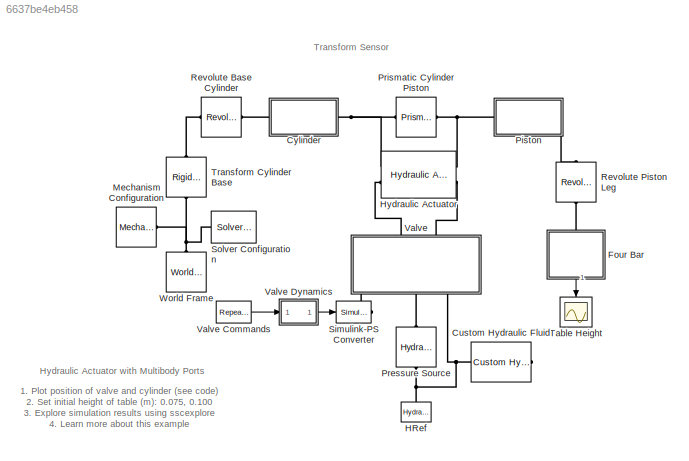
MODEL slx_6637be4eb458
KIND model
CONFIG AbsTol = 1e-3
CONFIG EnableMultiTasking = on
CONFIG FixedStep = auto
CONFIG MaxStep = auto
CONFIG MinStep = auto
CONFIG PostLoadFcn = warning off sm:compiler:state:UnsatisfiedDesiredTarget\nwarning off Simulink:Engine:UsingDefaultMaxStepSize\n
CONFIG RelTol = 1e-3
CONFIG SampleTimeConstraint = Unconstrained
CONFIG Solver = VariableStepAuto
CONFIG SolverName = VariableStepAuto
CONFIG StartTime = 0.0
CONFIG StopTime = 30
WORKSPACE source: MATLAB code (in-file)
WORKSPACE cyl_len = 11
WORKSPACE cyl_rOut = 1.1
WORKSPACE cyl_rInn = 1
WORKSPACE cap_len = 1
WORKSPACE pst_len = 1
WORKSPACE pst_rOut = cyl_rInn  (= 1)
WORKSPACE rod_len = 14
WORKSPACE rod_rOut = 0.5
WORKSPACE leg_length = 15
WORKSPACE platform_length = 25
BLOCK [Reference] Custom Hydraulic Fluid  REF=fl_lib/Hydraulic/Hydraulic Utilities/Custom Hydraulic
Fluid
  Ports = [0, 0, 0, 0, 0, 0, 1]
  SourceBlock = fl_lib/Hydraulic/Hydraulic Utilities/Custom Hydraulic\nFluid
  SourceProductBaseCode = SS
  SourceProductName = Simscape
  SourceType = Custom Hydraulic\nFluid
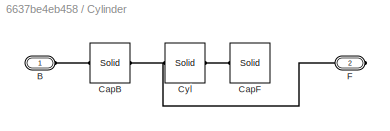
BLOCK [SubSystem] Cylinder
  Ports = [0, 0, 0, 0, 0, 1, 1]
  RequestExecContextInheritance = off
BLOCK [PMIOPort] Cylinder/B
  Side = Left
BLOCK [Reference] Cylinder/CapB  REF=sm_lib/Body Elements/Solid
  Ports = [0, 0, 0, 0, 0, 1, 1]
  SourceBlock = sm_lib/Body Elements/Solid
  SourceProductBaseCode = MS
  SourceProductName = Simscape Multibody
  SourceType = Solid
BLOCK [Reference] Cylinder/CapF  REF=sm_lib/Body Elements/Solid
  Ports = [0, 0, 0, 0, 0, 1, 1]
  SourceBlock = sm_lib/Body Elements/Solid
  SourceProductBaseCode = MS
  SourceProductName = Simscape Multibody
  SourceType = Solid
BLOCK [Reference] Cylinder/Cyl  REF=sm_lib/Body Elements/Solid
  Ports = [0, 0, 0, 0, 0, 1, 1]
  SourceBlock = sm_lib/Body Elements/Solid
  SourceProductBaseCode = MS
  SourceProductName = Simscape Multibody
  SourceType = Solid
BLOCK [PMIOPort] Cylinder/F
  Port = 2
  Side = Right
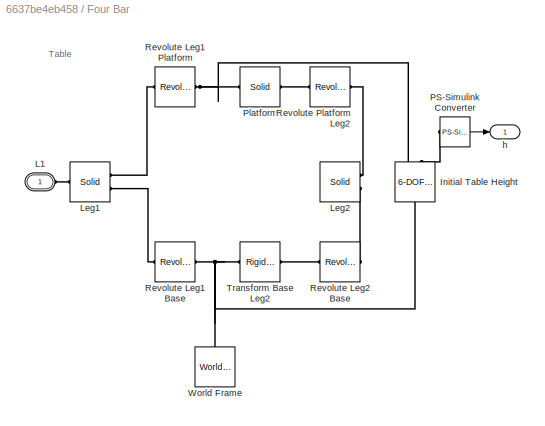
BLOCK [SubSystem] Four Bar
  AttributesFormatString = %<table_height> m
  Ports = [0, 1, 0, 0, 0, 1]
  RequestExecContextInheritance = off
  Tag = PublishSubsystem
BLOCK [Reference] Four Bar/Initial Table Height  REF=sm_lib/Joints/6-DOF Joint
  AttributesFormatString = py0: %<PyPositionTargetValue>
  Ports = [0, 0, 0, 0, 0, 1, 2]
  SourceBlock = sm_lib/Joints/6-DOF Joint
  SourceProductBaseCode = MS
  SourceProductName = Simscape Multibody
  SourceType = 6-DOF Joint
BLOCK [PMIOPort] Four Bar/L1
  Side = Left
BLOCK [Reference] Four Bar/Leg1  REF=sm_lib/Body Elements/Solid
  Ports = [0, 0, 0, 0, 0, 2, 1]
  SourceBlock = sm_lib/Body Elements/Solid
  SourceProductBaseCode = MS
  SourceProductName = Simscape Multibody
  SourceType = Solid
BLOCK [Reference] Four Bar/Leg2  REF=sm_lib/Body Elements/Solid
  Ports = [0, 0, 0, 0, 0, 2, 1]
  SourceBlock = sm_lib/Body Elements/Solid
  SourceProductBaseCode = MS
  SourceProductName = Simscape Multibody
  SourceType = Solid
BLOCK [Reference] Four Bar/PS-Simulink Converter  REF=nesl_utility/PS-Simulink
Converter
  Ports = [0, 1, 0, 0, 0, 1]
  SourceBlock = nesl_utility/PS-Simulink\nConverter
  SourceProductBaseCode = SS
  SourceProductName = Simscape
  SourceType = PS-Simulink\nConverter
BLOCK [Reference] Four Bar/Platform  REF=sm_lib/Body Elements/Solid
  Ports = [0, 0, 0, 0, 0, 1, 1]
  SourceBlock = sm_lib/Body Elements/Solid
  SourceProductBaseCode = MS
  SourceProductName = Simscape Multibody
  SourceType = Solid
BLOCK [Reference] Four Bar/Revolute Leg1 Base  REF=sm_lib/Joints/Revolute Joint
  Ports = [0, 0, 0, 0, 0, 1, 1]
  SourceBlock = sm_lib/Joints/Revolute Joint
  SourceProductBaseCode = MS
  SourceProductName = Simscape Multibody
  SourceType = Revolute Joint
BLOCK [Reference] Four Bar/Revolute Leg1 Platform  REF=sm_lib/Joints/Revolute Joint
  Ports = [0, 0, 0, 0, 0, 1, 1]
  SourceBlock = sm_lib/Joints/Revolute Joint
  SourceProductBaseCode = MS
  SourceProductName = Simscape Multibody
  SourceType = Revolute Joint
BLOCK [Reference] Four Bar/Revolute Leg2 Base  REF=sm_lib/Joints/Revolute Joint
  Ports = [0, 0, 0, 0, 0, 1, 1]
  SourceBlock = sm_lib/Joints/Revolute Joint
  SourceProductBaseCode = MS
  SourceProductName = Simscape Multibody
  SourceType = Revolute Joint
BLOCK [Reference] Four Bar/Revolute Platform Leg2  REF=sm_lib/Joints/Revolute Joint
  Ports = [0, 0, 0, 0, 0, 1, 1]
  SourceBlock = sm_lib/Joints/Revolute Joint
  SourceProductBaseCode = MS
  SourceProductName = Simscape Multibody
  SourceType = Revolute Joint
BLOCK [Reference] Four Bar/Transform Base Leg2  REF=sm_lib/Frames and
Transforms/Rigid
Transform
  Ports = [0, 0, 0, 0, 0, 1, 1]
  SourceBlock = sm_lib/Frames and\nTransforms/Rigid\nTransform
  SourceProductBaseCode = MS
  SourceProductName = Simscape Multibody
  SourceType = Rigid\nTransform
BLOCK [Reference] Four Bar/World Frame  REF=sm_lib/Frames and
Transforms/World Frame
  Ports = [0, 0, 0, 0, 0, 0, 1]
  SourceBlock = sm_lib/Frames and\nTransforms/World Frame
  SourceProductBaseCode = MS
  SourceProductName = Simscape Multibody
  SourceType = World Frame
BLOCK [Outport] Four Bar/h
  IconDisplay = Port number
BLOCK [Reference] HRef  REF=fl_lib/Hydraulic/Hydraulic Elements/Hydraulic Reference
  Ports = [0, 0, 0, 0, 0, 1]
  SourceBlock = fl_lib/Hydraulic/Hydraulic Elements/Hydraulic Reference
  SourceProductBaseCode = SS
  SourceProductName = Simscape
  SourceType = Hydraulic Reference
  Tag = Factory Generic
BLOCK [Reference] Hydraulic Actuator  REF=Multibody_Multiphysics_Lib/Hydraulic/Hydraulic
Actuator
Multibody
  Ports = [0, 0, 0, 0, 0, 2, 2]
  SourceBlock = Multibody_Multiphysics_Lib/Hydraulic/Hydraulic\nActuator\nMultibody
  SourceProductName = Simscape Multibody Multiphysics Library
  SourceType = Double-Acting Hydraulic Cylinder, Multibody Ports
  Tag = PublishSubsystem
BLOCK [Reference] Mechanism Configuration  REF=sm_lib/Utilities/Mechanism
Configuration
  Ports = [0, 0, 0, 0, 0, 0, 1]
  SourceBlock = sm_lib/Utilities/Mechanism\nConfiguration
  SourceProductBaseCode = MS
  SourceProductName = Simscape Multibody
  SourceType = Mechanism\nConfiguration
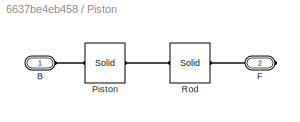
BLOCK [SubSystem] Piston
  Ports = [0, 0, 0, 0, 0, 1, 1]
  RequestExecContextInheritance = off
BLOCK [PMIOPort] Piston/B
  Side = Left
BLOCK [PMIOPort] Piston/F
  Port = 2
  Side = Right
BLOCK [Reference] Piston/Piston  REF=sm_lib/Body Elements/Solid
  Ports = [0, 0, 0, 0, 0, 1, 1]
  SourceBlock = sm_lib/Body Elements/Solid
  SourceProductBaseCode = MS
  SourceProductName = Simscape Multibody
  SourceType = Solid
BLOCK [Reference] Piston/Rod  REF=sm_lib/Body Elements/Solid
  Ports = [0, 0, 0, 0, 0, 1, 1]
  SourceBlock = sm_lib/Body Elements/Solid
  SourceProductBaseCode = MS
  SourceProductName = Simscape Multibody
  SourceType = Solid
BLOCK [Reference] Pressure Source  REF=fl_lib/Hydraulic/Hydraulic Sources/Hydraulic Constant
Pressure Source
  Ports = [0, 0, 0, 0, 0, 1, 1]
  SourceBlock = fl_lib/Hydraulic/Hydraulic Sources/Hydraulic Constant\nPressure Source
  SourceProductBaseCode = SS
  SourceProductName = Simscape
  SourceType = Hydraulic Constant\nPressure Source
BLOCK [Reference] Prismatic Cylinder Piston  REF=sm_lib/Joints/Prismatic
Joint
  Ports = [0, 0, 0, 0, 0, 1, 1]
  SourceBlock = sm_lib/Joints/Prismatic\nJoint
  SourceProductBaseCode = MS
  SourceProductName = Simscape Multibody
  SourceType = Prismatic\nJoint
BLOCK [Reference] Revolute Base Cylinder  REF=sm_lib/Joints/Revolute Joint
  Ports = [0, 0, 0, 0, 0, 1, 1]
  SourceBlock = sm_lib/Joints/Revolute Joint
  SourceProductBaseCode = MS
  SourceProductName = Simscape Multibody
  SourceType = Revolute Joint
BLOCK [Reference] Revolute Piston Leg  REF=sm_lib/Joints/Revolute Joint
  Ports = [0, 0, 0, 0, 0, 1, 1]
  SourceBlock = sm_lib/Joints/Revolute Joint
  SourceProductBaseCode = MS
  SourceProductName = Simscape Multibody
  SourceType = Revolute Joint
BLOCK [Reference] Simulink-PS Converter  REF=nesl_utility/Simulink-PS
Converter
  Ports = [1, 0, 0, 0, 0, 0, 1]
  SourceBlock = nesl_utility/Simulink-PS\nConverter
  SourceProductBaseCode = SS
  SourceProductName = Simscape
  SourceType = Simulink-PS\nConverter
BLOCK [Reference] Solver Configuration  REF=nesl_utility/Solver
Configuration
  Ports = [0, 0, 0, 0, 0, 0, 1]
  SourceBlock = nesl_utility/Solver\nConfiguration
  SourceProductBaseCode = SS
  SourceProductName = Simscape
  SourceType = Solver\nConfiguration
BLOCK [Scope] Table Height
  Floating = off
  NumInputPorts = 1
  Ports = [1]
  ScopeSpecificationString = Simulink.scopes.TimeScopeBlockCfg('CurrentConfiguration', extmgr.ConfigurationSet(extmgr.Configuration('Core','General UI',true),extmgr.Configuration('Core','Source UI',true),extmgr.Configuration('Sources','WiredSimulink',true),extmgr.Configuration('Visuals','Time Domain',true,'SerializedDisplays',{struct('MinYLimReal','0.05189','MaxYLimReal','0.1609','YLabelReal','','MinYLimMag','0.05189','MaxYLi...<+1395ch>
BLOCK [Reference] Transform Cylinder Base  REF=sm_lib/Frames and
Transforms/Rigid
Transform
  Ports = [0, 0, 0, 0, 0, 1, 1]
  SourceBlock = sm_lib/Frames and\nTransforms/Rigid\nTransform
  SourceProductBaseCode = MS
  SourceProductName = Simscape Multibody
  SourceType = Rigid\nTransform
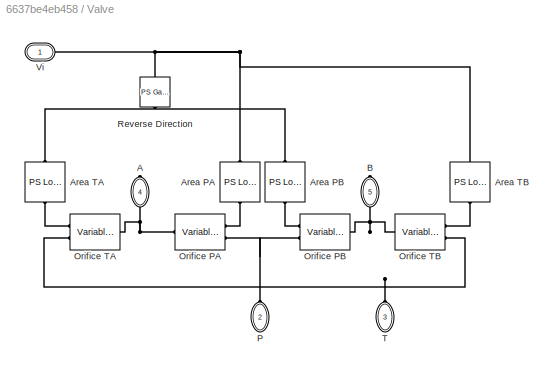
BLOCK [SubSystem] Valve
  Ports = [0, 0, 0, 0, 0, 3, 2]
  RequestExecContextInheritance = off
BLOCK [Reference] Valve Commands  REF=simulink/Sources/Repeating
Sequence
Stair
  Ports = [0, 1]
  SourceBlock = simulink/Sources/Repeating\nSequence\nStair
  SourceProductBaseCode = SL
  SourceProductName = Simulink
  SourceType = Repeating Sequence Stair
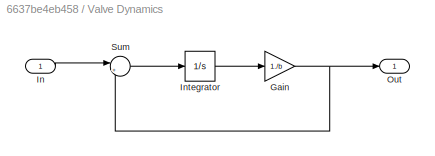
BLOCK [SubSystem] Valve Dynamics
  Ports = [1, 1]
  RequestExecContextInheritance = off
BLOCK [Gain] Valve Dynamics/Gain
  Gain = 1./b
  OutDataTypeStr = Inherit: Inherit via internal rule
  ParamDataTypeStr = Inherit: Inherit via internal rule
  SaturateOnIntegerOverflow = off
BLOCK [Inport] Valve Dynamics/In
  IconDisplay = Port number
BLOCK [Integrator] Valve Dynamics/Integrator
  InitialCondition = x_initial.*b
  Ports = [1, 1]
BLOCK [Outport] Valve Dynamics/Out
  IconDisplay = Port number
BLOCK [Sum] Valve Dynamics/Sum
  IconShape = round
  Inputs = |+-
  Ports = [2, 1]
BLOCK [PMIOPort] Valve/A
  Port = 4
  Side = Right
  Tag = PMCPort
BLOCK [Reference] Valve/Area PA  REF=fl_lib/Physical Signals/Lookup Tables/PS Lookup Table (1D)
  Ports = [0, 0, 0, 0, 0, 1, 1]
  SourceBlock = fl_lib/Physical Signals/Lookup Tables/PS Lookup Table (1D)
  SourceProductBaseCode = SS
  SourceProductName = Simscape
  SourceType = PS Lookup Table (1D)
BLOCK [Reference] Valve/Area PB  REF=fl_lib/Physical Signals/Lookup Tables/PS Lookup Table (1D)
  Ports = [0, 0, 0, 0, 0, 1, 1]
  SourceBlock = fl_lib/Physical Signals/Lookup Tables/PS Lookup Table (1D)
  SourceProductBaseCode = SS
  SourceProductName = Simscape
  SourceType = PS Lookup Table (1D)
BLOCK [Reference] Valve/Area TA  REF=fl_lib/Physical Signals/Lookup Tables/PS Lookup Table (1D)
  Ports = [0, 0, 0, 0, 0, 1, 1]
  SourceBlock = fl_lib/Physical Signals/Lookup Tables/PS Lookup Table (1D)
  SourceProductBaseCode = SS
  SourceProductName = Simscape
  SourceType = PS Lookup Table (1D)
BLOCK [Reference] Valve/Area TB  REF=fl_lib/Physical Signals/Lookup Tables/PS Lookup Table (1D)
  Ports = [0, 0, 0, 0, 0, 1, 1]
  SourceBlock = fl_lib/Physical Signals/Lookup Tables/PS Lookup Table (1D)
  SourceProductBaseCode = SS
  SourceProductName = Simscape
  SourceType = PS Lookup Table (1D)
BLOCK [PMIOPort] Valve/B
  Port = 5
  Side = Right
  Tag = PMCPort
BLOCK [Reference] Valve/Orifice PA  REF=fl_lib/Hydraulic/Hydraulic Elements/Variable Area
Hydraulic Orifice
  Ports = [0, 0, 0, 0, 0, 2, 1]
  SourceBlock = fl_lib/Hydraulic/Hydraulic Elements/Variable Area\nHydraulic Orifice
  SourceProductBaseCode = SS
  SourceProductName = Simscape
  SourceType = Variable Area\nHydraulic Orifice
BLOCK [Reference] Valve/Orifice PB  REF=fl_lib/Hydraulic/Hydraulic Elements/Variable Area
Hydraulic Orifice
  Ports = [0, 0, 0, 0, 0, 2, 1]
  SourceBlock = fl_lib/Hydraulic/Hydraulic Elements/Variable Area\nHydraulic Orifice
  SourceProductBaseCode = SS
  SourceProductName = Simscape
  SourceType = Variable Area\nHydraulic Orifice
BLOCK [Reference] Valve/Orifice TA  REF=fl_lib/Hydraulic/Hydraulic Elements/Variable Area
Hydraulic Orifice
  Ports = [0, 0, 0, 0, 0, 2, 1]
  SourceBlock = fl_lib/Hydraulic/Hydraulic Elements/Variable Area\nHydraulic Orifice
  SourceProductBaseCode = SS
  SourceProductName = Simscape
  SourceType = Variable Area\nHydraulic Orifice
BLOCK [Reference] Valve/Orifice TB  REF=fl_lib/Hydraulic/Hydraulic Elements/Variable Area
Hydraulic Orifice
  Ports = [0, 0, 0, 0, 0, 2, 1]
  SourceBlock = fl_lib/Hydraulic/Hydraulic Elements/Variable Area\nHydraulic Orifice
  SourceProductBaseCode = SS
  SourceProductName = Simscape
  SourceType = Variable Area\nHydraulic Orifice
BLOCK [PMIOPort] Valve/P
  Port = 2
  Side = Left
  Tag = PMCPort
BLOCK [Reference] Valve/Reverse Direction  REF=fl_lib/Physical Signals/Functions/PS Gain
  Ports = [0, 0, 0, 0, 0, 1, 1]
  SourceBlock = fl_lib/Physical Signals/Functions/PS Gain
  SourceProductBaseCode = SS
  SourceProductName = Simscape
  SourceType = PS Gain
BLOCK [PMIOPort] Valve/T
  Port = 3
  Side = Left
  Tag = PMCPort
BLOCK [PMIOPort] Valve/Vi
  Side = Left
  Tag = PMCPort
BLOCK [Reference] World Frame  REF=sm_lib/Frames and
Transforms/World Frame
  Ports = [0, 0, 0, 0, 0, 0, 1]
  SourceBlock = sm_lib/Frames and\nTransforms/World Frame
  SourceProductBaseCode = MS
  SourceProductName = Simscape Multibody
  SourceType = World Frame
ANNOTATION (root): 1. Plot position of valve and cylinder ( see code ) 2. Set initial height of table (m): 0.075 , 0.100 3. Explore simulation results using sscexplore 4. Learn more about this example
ANNOTATION (root): Hydraulic Actuator with Multibody Ports
ANNOTATION (root): Transform Sensor
ANNOTATION Four Bar: Table
LINE Four Bar/PS-Simulink Converter:1 -> Four Bar/h:1
LINE Four Bar:1 -> Table Height:1
LINE Valve Commands:1 -> Valve Dynamics:1
NET Valve Dynamics/Gain:1 -> Valve Dynamics/Out:1, Valve Dynamics/Sum:2
LINE Valve Dynamics/In:1 -> Valve Dynamics/Sum:1
LINE Valve Dynamics/Integrator:1 -> Valve Dynamics/Gain:1
LINE Valve Dynamics/Sum:1 -> Valve Dynamics/Integrator:1
LINE Valve Dynamics:1 -> Simulink-PS Converter:1
PNET net1: Custom Hydraulic Fluid:RConn1 -- HRef:LConn1 -- Pressure Source:RConn1 -- Valve:LConn3
PLINE Cylinder/B:RConn1 -- Cylinder/CapB:LConn1
PNET net2: Cylinder/CapB:RConn1 -- Cylinder/Cyl:LConn1 -- Cylinder/F:RConn1
PLINE Cylinder/CapF:LConn1 -- Cylinder/Cyl:RConn1
PLINE Cylinder:LConn1 -- Revolute Base Cylinder:RConn1
PNET net3: Cylinder:RConn1 -- Hydraulic Actuator:LConn1 -- Prismatic Cylinder Piston:LConn1
PNET net4: Four Bar/Initial Table Height:LConn1 -- Four Bar/Revolute Leg1 Base:LConn1 -- Four Bar/Transform Base Leg2:LConn1 -- Four Bar/World Frame:RConn1
PNET net5: Four Bar/Initial Table Height:RConn1 -- Four Bar/Platform:LConn1 -- Four Bar/Revolute Leg1 Platform:LConn1
PLINE Four Bar/Initial Table Height:RConn2 -- Four Bar/PS-Simulink Converter:LConn1
PLINE Four Bar/L1:RConn1 -- Four Bar/Leg1:RConn1
PLINE Four Bar/Leg1:LConn1 -- Four Bar/Revolute Leg1 Platform:RConn1
PLINE Four Bar/Leg1:LConn2 -- Four Bar/Revolute Leg1 Base:RConn1
PLINE Four Bar/Leg2:LConn1 -- Four Bar/Revolute Platform Leg2:RConn1
PLINE Four Bar/Leg2:LConn2 -- Four Bar/Revolute Leg2 Base:RConn1
PLINE Four Bar/Platform:RConn1 -- Four Bar/Revolute Platform Leg2:LConn1
PLINE Four Bar/Revolute Leg2 Base:LConn1 -- Four Bar/Transform Base Leg2:RConn1
PLINE Four Bar:LConn1 -- Revolute Piston Leg:RConn1
PLINE Hydraulic Actuator:LConn2 -- Valve:RConn1
PNET net6: Hydraulic Actuator:RConn1 -- Piston:LConn1 -- Prismatic Cylinder Piston:RConn1
PLINE Hydraulic Actuator:RConn2 -- Valve:RConn2
PNET net7: Mechanism Configuration:RConn1 -- Solver Configuration:RConn1 -- Transform Cylinder Base:LConn1 -- World Frame:RConn1
PLINE Piston/B:RConn1 -- Piston/Piston:LConn1
PLINE Piston/F:RConn1 -- Piston/Rod:RConn1
PLINE Piston/Piston:RConn1 -- Piston/Rod:LConn1
PLINE Piston:RConn1 -- Revolute Piston Leg:LConn1
PLINE Pressure Source:LConn1 -- Valve:LConn2
PLINE Revolute Base Cylinder:LConn1 -- Transform Cylinder Base:RConn1
PLINE Simulink-PS Converter:RConn1 -- Valve:LConn1
PNET net8: Valve/A:RConn1 -- Valve/Orifice PA:RConn1 -- Valve/Orifice TA:RConn1
PNET net9: Valve/Area PA:LConn1 -- Valve/Area TB:LConn1 -- Valve/Reverse Direction:LConn1 -- Valve/Vi:RConn1
PLINE Valve/Area PA:RConn1 -- Valve/Orifice PA:LConn1
PNET net10: Valve/Area PB:LConn1 -- Valve/Area TA:LConn1 -- Valve/Reverse Direction:RConn1
PLINE Valve/Area PB:RConn1 -- Valve/Orifice PB:LConn1
PLINE Valve/Area TA:RConn1 -- Valve/Orifice TA:LConn1
PLINE Valve/Area TB:RConn1 -- Valve/Orifice TB:LConn1
PNET net11: Valve/B:RConn1 -- Valve/Orifice PB:RConn1 -- Valve/Orifice TB:RConn1
PNET net12: Valve/Orifice PA:LConn2 -- Valve/Orifice PB:LConn2 -- Valve/P:RConn1
PNET net13: Valve/Orifice TA:LConn2 -- Valve/Orifice TB:LConn2 -- Valve/T:RConn1
note: NET lines group one-source signal fan-out (src -> all destinations, sorted); 1:1 wires keep LINE; PNET lines group multi-terminal physical nets as a canonical sorted terminal list (undirected conserving connections); 2-terminal nets keep the pairwise PLINE form
